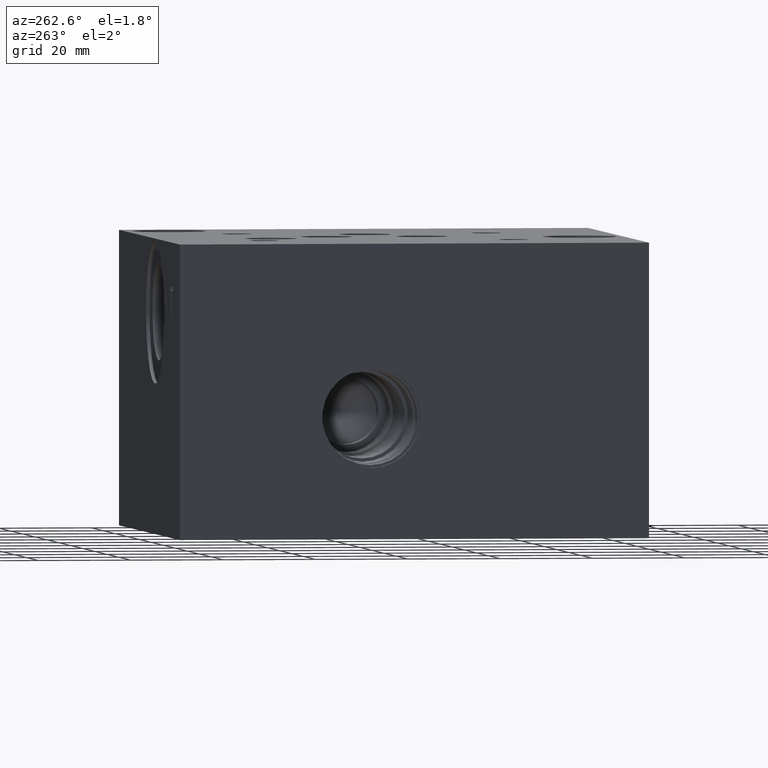
[diagram: clean part render]
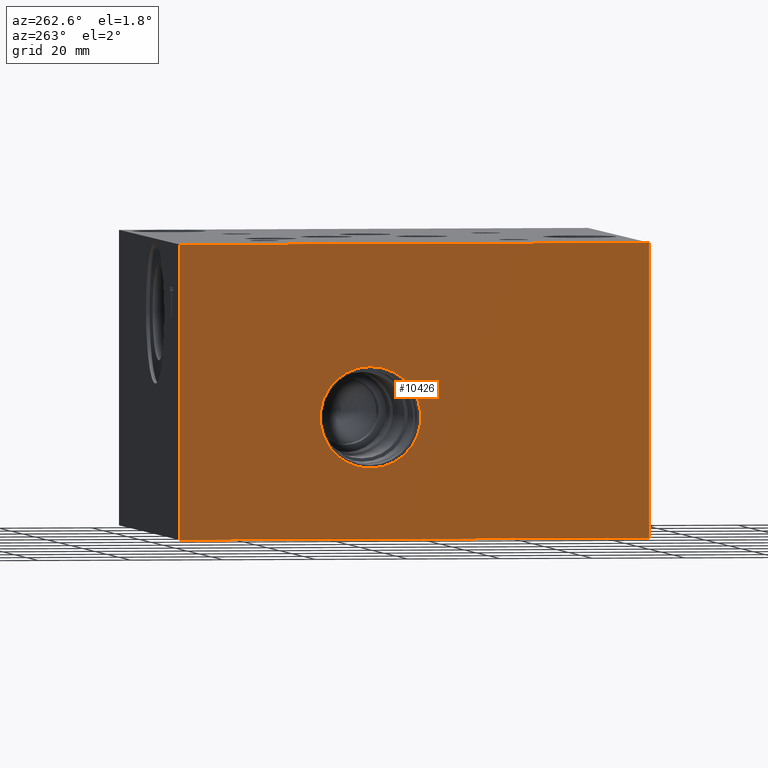
[diagram: same view with one face highlighted and labeled with its STEP entity id]
A machine part, auxiliary view. The second image highlights one B-rep face of the part: STEP entity #10426.
In plain terms, the highlighted planar face has unit normal (-1, 0, 0).
Its self-contained STEP definition (entity closure, byte-faithful):
#104=CIRCLE('',#10720,10.9093);
#105=CIRCLE('',#10721,10.9093);
#343=FACE_BOUND('',#1772,.T.);
#643=PLANE('',#11000);
#1177=FACE_OUTER_BOUND('',#1771,.T.);
#1771=EDGE_LOOP('',(#9259,#9260,#9261,#9262));
#1772=EDGE_LOOP('',(#9263,#9264));
#2130=LINE('',#15984,#3069);
#2726=LINE('',#18119,#3665);
#2727=LINE('',#18121,#3666);
#2728=LINE('',#18122,#3667);
#3069=VECTOR('',#11506,10.);
#3665=VECTOR('',#13052,10.);
#3666=VECTOR('',#13053,10.);
#3667=VECTOR('',#13054,10.);
#4390=VERTEX_POINT('',#15977);
#4393=VERTEX_POINT('',#15982);
#4784=VERTEX_POINT('',#17562);
#4785=VERTEX_POINT('',#17563);
#4977=VERTEX_POINT('',#18118);
#4978=VERTEX_POINT('',#18120);
#5579=EDGE_CURVE('',#4390,#4393,#2130,.T.);
#6161=EDGE_CURVE('',#4784,#4785,#104,.T.);
#6162=EDGE_CURVE('',#4785,#4784,#105,.T.);
#6422=EDGE_CURVE('',#4977,#4390,#2726,.T.);
#6423=EDGE_CURVE('',#4978,#4393,#2727,.T.);
#6424=EDGE_CURVE('',#4977,#4978,#2728,.T.);
#9259=ORIENTED_EDGE('',*,*,#6422,.T.);
#9260=ORIENTED_EDGE('',*,*,#5579,.T.);
#9261=ORIENTED_EDGE('',*,*,#6423,.F.);
#9262=ORIENTED_EDGE('',*,*,#6424,.F.);
#9263=ORIENTED_EDGE('',*,*,#6161,.T.);
#9264=ORIENTED_EDGE('',*,*,#6162,.T.);
#10426=ADVANCED_FACE('',(#1177,#343),#643,.T.);
#10720=AXIS2_PLACEMENT_3D('',#17564,#12408,#12409);
#10721=AXIS2_PLACEMENT_3D('',#17565,#12410,#12411);
#11000=AXIS2_PLACEMENT_3D('',#18117,#13050,#13051);
#11506=DIRECTION('',(0.,0.,1.));
#12408=DIRECTION('center_axis',(1.,0.,0.));
#12409=DIRECTION('ref_axis',(0.,0.,1.));
#12410=DIRECTION('center_axis',(1.,0.,0.));
#12411=DIRECTION('ref_axis',(0.,0.,1.));
#13050=DIRECTION('center_axis',(-1.,0.,0.));
#13051=DIRECTION('ref_axis',(0.,-1.,0.));
#13052=DIRECTION('',(0.,-1.,0.));
#13053=DIRECTION('',(0.,-1.,0.));
#13054=DIRECTION('',(0.,0.,1.));
#15977=CARTESIAN_POINT('',(0.,0.,0.));
#15982=CARTESIAN_POINT('',(0.,0.,63.5));
#15984=CARTESIAN_POINT('',(0.,0.,0.));
#17562=CARTESIAN_POINT('',(0.,60.325,37.1221));
#17563=CARTESIAN_POINT('',(0.,60.325,15.3035));
#17564=CARTESIAN_POINT('Origin',(0.,60.325,26.2128));
#17565=CARTESIAN_POINT('Origin',(0.,60.325,26.2128));
#18117=CARTESIAN_POINT('Origin',(0.,101.6,0.));
#18118=CARTESIAN_POINT('',(0.,101.6,0.));
#18119=CARTESIAN_POINT('',(0.,101.6,0.));
#18120=CARTESIAN_POINT('',(0.,101.6,63.5));
#18121=CARTESIAN_POINT('',(0.,101.6,63.5));
#18122=CARTESIAN_POINT('',(0.,101.6,0.));